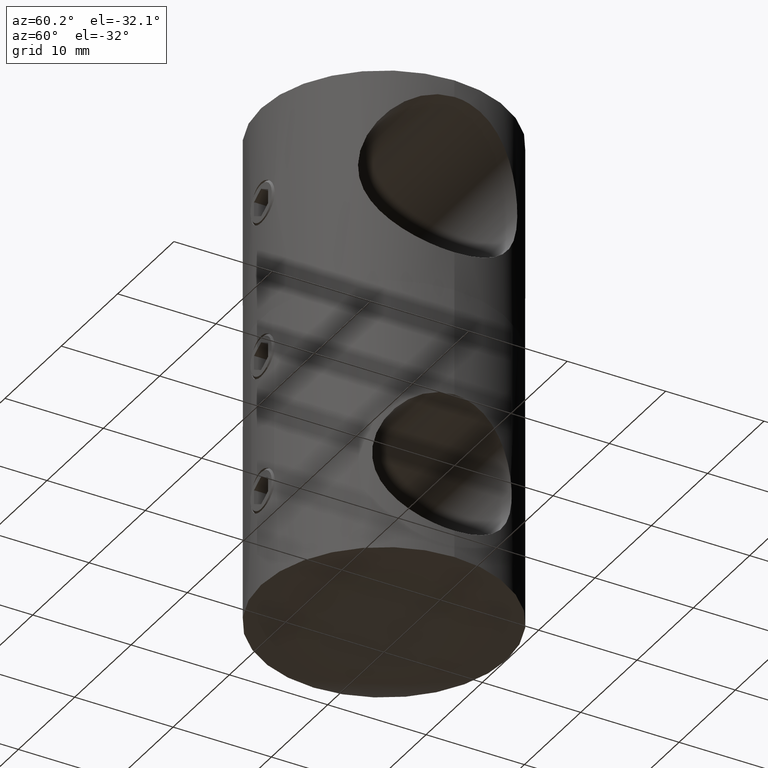
[diagram: clean part render]
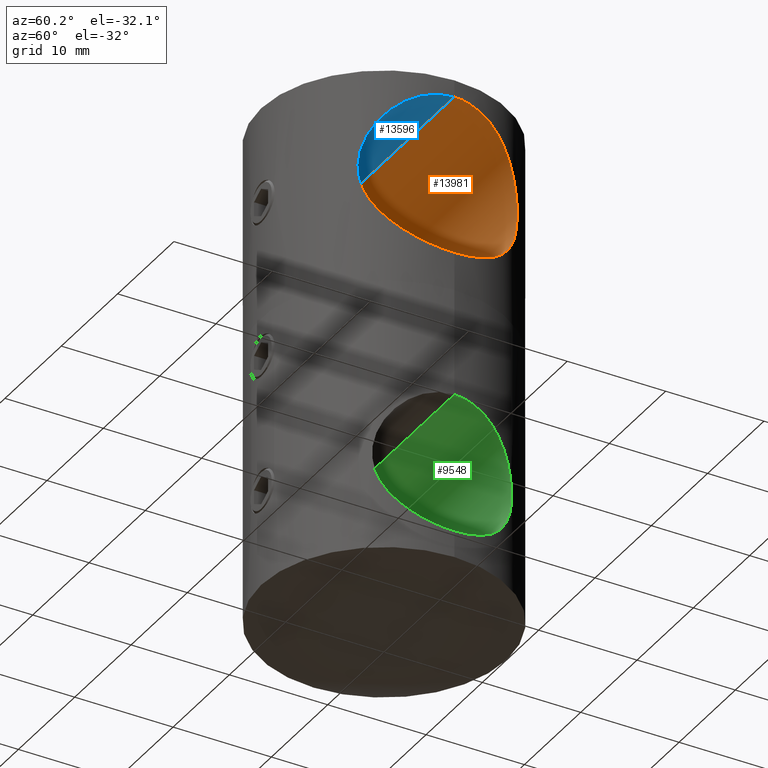
[diagram: same view with three faces highlighted in distinct colors, each labeled with its STEP entity id]
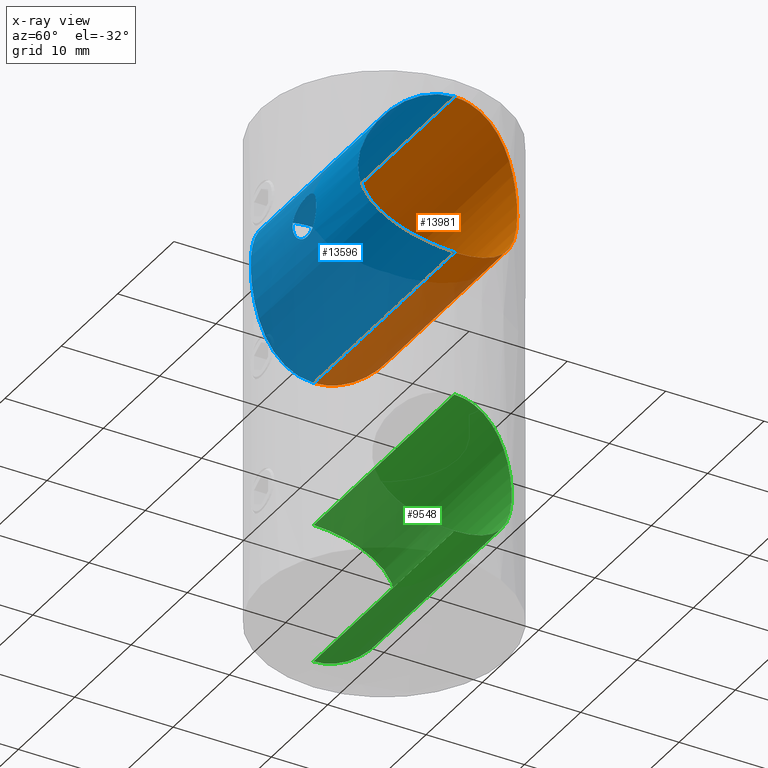
[diagram: x-ray of the same camera — body ghosted, the three highlighted faces saturated]
A machine part, auxiliary view with three faces highlighted in distinct colors.
The next image is the same camera in x-ray (body ghosted, the three faces saturated) — at least one of them is partly hidden behind the body in this view.
Their STEP definitions:

[orange] entity #13981 — the highlighted cylindrical surface (partial cylindrical patch) has radius 8.1 mm, axis along (1, 0, 0).
#131 = CARTESIAN_POINT ( 'NONE',  ( 12.50000000000000000, 2.427082314390154871E-15, 8.099999999999999645 ) ) ;
#816 = CARTESIAN_POINT ( 'NONE',  ( -12.35767926092468372, 1.900159969238726543, -7.878707128710948915 ) ) ;
#969 = EDGE_CURVE ( 'NONE', #1484, #6948, #11915, .T. ) ;
#1101 = CARTESIAN_POINT ( 'NONE',  ( 11.72524645729331816, 4.338365169962789203, 6.845111458609633104 ) ) ;
#1153 = CARTESIAN_POINT ( 'NONE',  ( -12.50000000000000000, 2.726687383286163214E-15, 8.099999999999999645 ) ) ;
#1163 = CARTESIAN_POINT ( 'NONE',  ( 9.950403799970375829, 7.566749653861298164, 2.902343117262097039 ) ) ;
#1217 = CARTESIAN_POINT ( 'NONE',  ( 9.879722448543168056, 7.661982178162126012, -2.679246210205128431 ) ) ;
#1344 = CARTESIAN_POINT ( 'NONE',  ( 11.29218558167254827, 5.376423904100859019, 6.080519229928162517 ) ) ;
#1398 = CARTESIAN_POINT ( 'NONE',  ( -12.22154858838973723, 2.672405942506484777, 7.665063226666491758 ) ) ;
#1484 = VERTEX_POINT ( 'NONE', #9557 ) ;
#1831 = CARTESIAN_POINT ( 'NONE',  ( -12.50000000000000000, 8.967065496086580962E-16, 8.099999999999999645 ) ) ;
#2259 = CARTESIAN_POINT ( 'NONE',  ( -9.880334013773667934, 7.657619852546257988, -2.653716543376681170 ) ) ;
#2318 = CARTESIAN_POINT ( 'NONE',  ( -12.21248697414113771, 2.678358357532246714, -7.649100295587559550 ) ) ;
#2338 = DIRECTION ( 'NONE',  ( 1.000000000000000000, -0.000000000000000000, -0.000000000000000000 ) ) ;
#2509 = CARTESIAN_POINT ( 'NONE',  ( -11.80508178603171565, 4.116968738876153111, -6.980705647827456950 ) ) ;
#2542 = CARTESIAN_POINT ( 'NONE',  ( 12.50000000000000355, 0.5528784438871122697, -8.100000000000003197 ) ) ;
#2665 = CARTESIAN_POINT ( 'NONE',  ( 9.615099075722453037, 7.987791517898862104, -1.370301011411880543 ) ) ;
#2666 = CARTESIAN_POINT ( 'NONE',  ( -12.49112763227392442, 0.5438777286051753590, 8.086328554396601476 ) ) ;
#2716 = CARTESIAN_POINT ( 'NONE',  ( 12.50000000000000000, 7.513900949208801608E-16, -8.099999999999999645 ) ) ;
#2729 = CARTESIAN_POINT ( 'NONE',  ( 9.700917027979013341, 7.883344374810544508, 1.880594189877250466 ) ) ;
#2788 = CARTESIAN_POINT ( 'NONE',  ( -12.42869573539206485, 1.360138927175487567, 7.989633586327260062 ) ) ;
#2909 = CARTESIAN_POINT ( 'NONE',  ( -12.50000000000000000, 1.734723475976807094E-15, 0.000000000000000000 ) ) ;
#3099 = DIRECTION ( 'NONE',  ( 0.000000000000000000, 0.000000000000000000, -1.000000000000000000 ) ) ;
#3110 = EDGE_LOOP ( 'NONE', ( #8944, #11411, #13011, #4473 ) ) ;
#3287 = VECTOR ( 'NONE', #2338, 1000.000000000000000 ) ;
#3795 = CARTESIAN_POINT ( 'NONE',  ( -12.50000000000000000, 1.734723475976807094E-15, -8.099999999999999645 ) ) ;
#3963 = CARTESIAN_POINT ( 'NONE',  ( -9.568569244901519610, 8.044376384039832573, -1.090564506137312373 ) ) ;
#4004 = CARTESIAN_POINT ( 'NONE',  ( 11.80531911616417062, 4.116239418310659204, 6.981102035184365562 ) ) ;
#4135 = CARTESIAN_POINT ( 'NONE',  ( 10.72318549548232269, 6.432673087154401337, -4.949268225173659275 ) ) ;
#4193 = CARTESIAN_POINT ( 'NONE',  ( 11.29106218945797657, 5.378467049727134075, -6.078259987980083601 ) ) ;
#4256 = CARTESIAN_POINT ( 'NONE',  ( -12.32358639111075327, 2.160796334112378592, 7.825461659380446910 ) ) ;
#4294 = VECTOR ( 'NONE', #12269, 1000.000000000000000 ) ;
#4316 = CARTESIAN_POINT ( 'NONE',  ( -12.50000000000000000, 8.967065496086580962E-16, 8.099999999999999645 ) ) ;
#4364 = CARTESIAN_POINT ( 'NONE',  ( 12.49110115871714832, 0.5451709117573753094, 8.086288115485565697 ) ) ;
#4473 = ORIENTED_EDGE ( 'NONE', *, *, #13827, .T. ) ;
#4925 = VERTEX_POINT ( 'NONE', #1831 ) ;
#5156 = CARTESIAN_POINT ( 'NONE',  ( -9.701591336837374513, 7.882512463272435710, -1.883833287180904037 ) ) ;
#5269 = CARTESIAN_POINT ( 'NONE',  ( -10.91395067144981290, 6.107510191931582177, -5.345263564523463629 ) ) ;
#5432 = CARTESIAN_POINT ( 'NONE',  ( 11.81273853583448030, 4.114187813272791594, -6.997060332505853353 ) ) ;
#5489 = CARTESIAN_POINT ( 'NONE',  ( -11.19526627058776036, 5.563968491168954422, 5.892240609505175364 ) ) ;
#5617 = CARTESIAN_POINT ( 'NONE',  ( 10.35589520320698043, 7.008696761748763215, 4.093141067324243210 ) ) ;
#5727 = CARTESIAN_POINT ( 'NONE',  ( -12.45561756411089505, 1.087043516167605084, 8.031366562875868809 ) ) ;
#5789 = CARTESIAN_POINT ( 'NONE',  ( 12.45529628258914556, 1.091060948458985713, 8.030868746058377639 ) ) ;
#6666 = CARTESIAN_POINT ( 'NONE',  ( -11.28850500002958590, 5.383832730285654122, -6.073538379814123367 ) ) ;
#6795 = CARTESIAN_POINT ( 'NONE',  ( -10.72008468265404524, 6.437815186178189819, -4.942573298076234245 ) ) ;
#6890 = CARTESIAN_POINT ( 'NONE',  ( 12.50000000000000000, 7.513900949208801608E-16, -8.099999999999999645 ) ) ;
#6895 = EDGE_CURVE ( 'NONE', #4925, #16720, #12281, .T. ) ;
#6948 = VERTEX_POINT ( 'NONE', #2716 ) ;
#6957 = CARTESIAN_POINT ( 'NONE',  ( -10.72337136915052191, 6.432384334378387081, 4.949706724176071937 ) ) ;
#7207 = CARTESIAN_POINT ( 'NONE',  ( -11.55808065896021652, 4.765924682120233236, 6.554653481533826209 ) ) ;
#7339 = AXIS2_PLACEMENT_3D ( 'NONE', #2909, #14585, #3099 ) ;
#8133 = CARTESIAN_POINT ( 'NONE',  ( -12.15475101984847406, 2.928408953426673289, -7.556761950785598536 ) ) ;
#8407 = CARTESIAN_POINT ( 'NONE',  ( -10.17952911167893504, 7.258907725143648904, 3.632230832960246847 ) ) ;
#8466 = CARTESIAN_POINT ( 'NONE',  ( 12.32475623888217875, 2.153082440414254339, -7.827294829591770586 ) ) ;
#8533 = CARTESIAN_POINT ( 'NONE',  ( 9.567435330464277854, 8.045733034332242184, 1.082216288772029467 ) ) ;
#8773 = CARTESIAN_POINT ( 'NONE',  ( 12.32307737004344794, 2.163398512750488223, 7.824660210649143188 ) ) ;
#8944 = ORIENTED_EDGE ( 'NONE', *, *, #6895, .F. ) ;
#9510 = CARTESIAN_POINT ( 'NONE',  ( -11.95657642635677753, 3.653719711810222925, -7.233948797580966428 ) ) ;
#9513 = EDGE_CURVE ( 'NONE', #4925, #1484, #18048, .T. ) ;
#9557 = CARTESIAN_POINT ( 'NONE',  ( -12.50000000000000000, 1.836811718986908191E-15, -8.099999999999999645 ) ) ;
#9562 = CARTESIAN_POINT ( 'NONE',  ( -9.520042000924567205, 8.100543242096662766, -0.5355436815845927567 ) ) ;
#9687 = CARTESIAN_POINT ( 'NONE',  ( -9.951367014874424655, 7.565489801909761169, -2.905676790652591102 ) ) ;
#9726 = CARTESIAN_POINT ( 'NONE',  ( 10.18366656129051684, 7.253124976668679835, -3.643694447425235072 ) ) ;
#9787 = CARTESIAN_POINT ( 'NONE',  ( -11.47028590896112910, 4.972980621955423786, 6.398955306423481204 ) ) ;
#9843 = CARTESIAN_POINT ( 'NONE',  ( 10.35700933999126860, 7.007021317796642279, -4.095874908106633683 ) ) ;
#9906 = CARTESIAN_POINT ( 'NONE',  ( 9.520717587152519812, 8.099749177061479344, -0.2818719119406181695 ) ) ;
#9960 = CARTESIAN_POINT ( 'NONE',  ( 10.91406870405932672, 6.107576731453586483, 5.345666896797819589 ) ) ;
#10141 = CARTESIAN_POINT ( 'NONE',  ( 12.42819789938510944, 1.364561915774268552, 7.988859174643784478 ) ) ;
#11238 = CARTESIAN_POINT ( 'NONE',  ( -11.72613561294977025, 4.336013166652545436, 6.846642254217911727 ) ) ;
#11358 = CARTESIAN_POINT ( 'NONE',  ( 9.520085792176004702, 8.100491771003921926, 0.5418367762477696026 ) ) ;
#11411 = ORIENTED_EDGE ( 'NONE', *, *, #9513, .T. ) ;
#11416 = CARTESIAN_POINT ( 'NONE',  ( 11.47415152566536278, 4.980473280214814835, 6.408801668019295406 ) ) ;
#11475 = CARTESIAN_POINT ( 'NONE',  ( 12.50000000000000533, 0.2724670366685572609, 8.100000000000003197 ) ) ;
#11476 = CARTESIAN_POINT ( 'NONE',  ( -12.02870553853695590, 3.409507870961618892, 7.352312087053694434 ) ) ;
#11580 = CARTESIAN_POINT ( 'NONE',  ( 12.22101742506993105, 2.675014017406148081, 7.664227444482222040 ) ) ;
#11659 = FACE_OUTER_BOUND ( 'NONE', #3110, .T. ) ;
#11915 = LINE ( 'NONE', #3795, #4294 ) ;
#12097 = CARTESIAN_POINT ( 'NONE',  ( -9.876153600626508933, 7.666560138321561801, 2.666214138353496299 ) ) ;
#12269 = DIRECTION ( 'NONE',  ( 1.000000000000000000, -0.000000000000000000, -0.000000000000000000 ) ) ;
#12281 = LINE ( 'NONE', #1153, #3287 ) ;
#12480 = CARTESIAN_POINT ( 'NONE',  ( -12.46342989338710794, 1.097403203460836751, -8.043894698703233814 ) ) ;
#12544 = CARTESIAN_POINT ( 'NONE',  ( -12.02679822803973586, 3.416090709427555439, -7.349187332237026915 ) ) ;
#12582 = CARTESIAN_POINT ( 'NONE',  ( 9.748972396418560393, 7.824788271344593760, -2.161675574595297356 ) ) ;
#12769 = CARTESIAN_POINT ( 'NONE',  ( 9.880370690349279172, 7.657572029206114905, 2.653841750881935635 ) ) ;
#13011 = ORIENTED_EDGE ( 'NONE', *, *, #969, .T. ) ;
#13823 = CARTESIAN_POINT ( 'NONE',  ( -10.18033033413548516, 7.257839893384698371, -3.634849969413386894 ) ) ;
#13827 = EDGE_CURVE ( 'NONE', #6948, #16720, #15807, .T. ) ;
#13941 = CARTESIAN_POINT ( 'NONE',  ( -12.50000000000000000, 1.836811718986908191E-15, -8.099999999999999645 ) ) ;
#13977 = CARTESIAN_POINT ( 'NONE',  ( 9.755755582469777920, 7.815712851448844312, 2.143809237059420614 ) ) ;
#13981 = ADVANCED_FACE ( 'NONE', ( #11659 ), #14352, .F. ) ;
#13999 = CARTESIAN_POINT ( 'NONE',  ( -12.31385491636070384, 2.165044730195933909, -7.809924464396011068 ) ) ;
#14034 = CARTESIAN_POINT ( 'NONE',  ( 12.22070116454564470, 2.675759442852999825, -7.663693953457597630 ) ) ;
#14099 = CARTESIAN_POINT ( 'NONE',  ( -11.28897980041873872, 5.371864682342065045, 6.067967955959832516 ) ) ;
#14161 = CARTESIAN_POINT ( 'NONE',  ( 9.580336641796414199, 8.029227403483570669, -1.102748966237373285 ) ) ;
#14174 = CARTESIAN_POINT ( 'NONE',  ( 12.50000000000000000, 2.427082314390154871E-15, 8.099999999999999645 ) ) ;
#14222 = CARTESIAN_POINT ( 'NONE',  ( 10.17867724942866658, 7.260129053857309778, 3.630111527136852700 ) ) ;
#14352 = CYLINDRICAL_SURFACE ( 'NONE', #7339, 8.099999999999999645 ) ;
#14585 = DIRECTION ( 'NONE',  ( 1.000000000000000000, -0.000000000000000000, -0.000000000000000000 ) ) ;
#15207 = CARTESIAN_POINT ( 'NONE',  ( -11.72360578016522226, 4.342880312005185317, -6.842318894509210381 ) ) ;
#15241 = CARTESIAN_POINT ( 'NONE',  ( -9.568298830503607633, 8.044728929722264610, 1.090548818117098362 ) ) ;
#15333 = CARTESIAN_POINT ( 'NONE',  ( -9.755670522168493619, 7.815819515107560456, -2.143436167924173574 ) ) ;
#15416 = CARTESIAN_POINT ( 'NONE',  ( 11.96490898092270427, 3.653242207598543345, -7.248842320046704479 ) ) ;
#15482 = CARTESIAN_POINT ( 'NONE',  ( 11.95630330996560708, 3.654558460803603470, 7.233492588720793037 ) ) ;
#15544 = CARTESIAN_POINT ( 'NONE',  ( -10.91357912058284896, 6.108250137240770705, 5.344554176448153449 ) ) ;
#15779 = CARTESIAN_POINT ( 'NONE',  ( -11.95753491745220209, 3.650557408356762679, 7.235529152022655452 ) ) ;
#15807 = B_SPLINE_CURVE_WITH_KNOTS ( 'NONE', 3,
 ( #6890, #2542, #18424, #8466, #14034, #15416, #5432, #17099, #4193, #18294, #4135, #9843, #9726, #1217, #12582, #2665, #14161, #18484, #9906, #11358, #8533, #2729, #13977, #12769, #1163, #14222, #5617, #18543, #9960, #1344, #11416, #1101, #4004, #15482, #16915, #11580, #8773, #10141, #5789, #4364, #11475, #131 ),
 .UNSPECIFIED., .F., .F.,
 ( 4, 2, 2, 2, 2, 2, 2, 2, 2, 2, 2, 2, 2, 2, 2, 2, 2, 2, 2, 2, 4 ),
 ( 1.405338240085282366E-19, 0.001632328287734299225, 0.003264656575468598016, 0.004896984863202897241, 0.006529313150937196032, 0.008161641438671493956, 0.009793969726405794482, 0.01142629801414009327, 0.01224246215800724354, 0.01305862630187439206, 0.01469095458960868912, 0.01550711873347584112, 0.01632328287734298791, 0.01795561116507728497, 0.01958793945281158203, 0.02122026774054587561, 0.02203643188441302761, 0.02285259602828017267, 0.02448492431601446626, 0.02530108845988161478, 0.02611725260374875984 ),
 .UNSPECIFIED. ) ;
#16720 = VERTEX_POINT ( 'NONE', #14174 ) ;
#16756 = CARTESIAN_POINT ( 'NONE',  ( -9.520973359971112160, 8.099448548831345462, 0.5518523867819271622 ) ) ;
#16820 = CARTESIAN_POINT ( 'NONE',  ( -10.35414406946437715, 7.011232456810718716, -4.088656822821724823 ) ) ;
#16915 = CARTESIAN_POINT ( 'NONE',  ( 12.02760166335872682, 3.413435212782875094, 7.350508868551387742 ) ) ;
#16969 = CARTESIAN_POINT ( 'NONE',  ( -10.35676433114384487, 7.007402823801430536, 4.095298590516947890 ) ) ;
#17036 = CARTESIAN_POINT ( 'NONE',  ( -11.80640174314149249, 4.113160411817484707, 6.982933690658644998 ) ) ;
#17099 = CARTESIAN_POINT ( 'NONE',  ( 11.47347012154552104, 4.982651548008703024, -6.407696794538249030 ) ) ;
#17100 = CARTESIAN_POINT ( 'NONE',  ( -12.50000000000000000, 0.2720569333735966544, 8.099999999999999645 ) ) ;
#17866 = CARTESIAN_POINT ( 'NONE',  ( -9.747884632849888931, 7.826158140951160469, 2.158288449265032938 ) ) ;
#18048 = B_SPLINE_CURVE_WITH_KNOTS ( 'NONE', 3,
 ( #4316, #17100, #2666, #5727, #2788, #4256, #1398, #11476, #15779, #17036, #11238, #7207, #9787, #14099, #5489, #15544, #6957, #16969, #8407, #12097, #17866, #15241, #16756, #9562, #3963, #5156, #15333, #2259, #9687, #13823, #16820, #6795, #5269, #6666, #18078, #15207, #2509, #9510, #12544, #8133, #2318, #13999, #816, #12480, #18134, #13941 ),
 .UNSPECIFIED., .F., .F.,
 ( 4, 2, 2, 2, 2, 2, 2, 2, 2, 2, 2, 2, 2, 2, 2, 2, 2, 2, 2, 2, 2, 2, 4 ),
 ( 0.02611725260374877372, 0.02693218829954851373, 0.02774712399534825374, 0.02937699538694773030, 0.03019193108274747378, 0.03100686677854721032, 0.03182180247434695380, 0.03263673817014669382, 0.03426660956174617384, 0.03589648095334565386, 0.03752635234494513389, 0.03915622373654461391, 0.04078609512814409394, 0.04160103082394383395, 0.04241596651974356702, 0.04404583791134304704, 0.04567570930294252707, 0.04730558069454200709, 0.04812051639034174710, 0.04893545208614148712, 0.04975038778194122713, 0.05056532347774096714, 0.05219519486934044022 ),
 .UNSPECIFIED. ) ;
#18078 = CARTESIAN_POINT ( 'NONE',  ( -11.47046356455962979, 4.989251766208274042, -6.402274271509117654 ) ) ;
#18134 = CARTESIAN_POINT ( 'NONE',  ( -12.49999999999999645, 0.5520462798414247363, -8.099999999999997868 ) ) ;
#18294 = CARTESIAN_POINT ( 'NONE',  ( 10.91686002276924761, 6.102307794144016029, -5.351167337320835493 ) ) ;
#18424 = CARTESIAN_POINT ( 'NONE',  ( 12.46351380821524835, 1.093711065827361439, -8.044010470471869567 ) ) ;
#18484 = CARTESIAN_POINT ( 'NONE',  ( 9.533095215835642122, 8.085260569258725383, -0.5595618880688133512 ) ) ;
#18543 = CARTESIAN_POINT ( 'NONE',  ( 10.72277615019982910, 6.433386929966103729, 4.948450939890698841 ) ) ;

[blue] entity #13596 — the highlighted cylindrical surface (partial cylindrical patch) has radius 8.1 mm, axis along (1, 0, 0).
#81 = CARTESIAN_POINT ( 'NONE',  ( -12.50000000000000355, -0.2724670366685518763, 8.099999999999997868 ) ) ;
#203 = CARTESIAN_POINT ( 'NONE',  ( 1.281772080391796909, -7.926559139495124917, 1.669046021202049923 ) ) ;
#331 = CARTESIAN_POINT ( 'NONE',  ( 0.5455564666696971488, -7.840890400948564043, -2.032537597385604133 ) ) ;
#335 = CARTESIAN_POINT ( 'NONE',  ( -12.22101742506993105, -2.675014017406140532, 7.664227444482220264 ) ) ;
#462 = CARTESIAN_POINT ( 'NONE',  ( -2.099963855778694377, -8.099990629276257792, 0.1390292074463651828 ) ) ;
#602 = CARTESIAN_POINT ( 'NONE',  ( 12.22154858838973723, -2.672405942506479004, 7.665063226666491758 ) ) ;
#673 = CARTESIAN_POINT ( 'NONE',  ( 9.876153600626508933, -7.666560138321561801, 2.666214138353491414 ) ) ;
#742 = CARTESIAN_POINT ( 'NONE',  ( 12.50000000000000000, 2.427082314390154871E-15, 8.099999999999999645 ) ) ;
#969 = EDGE_CURVE ( 'NONE', #1484, #6948, #11915, .T. ) ;
#983 = CARTESIAN_POINT ( 'NONE',  ( 9.520973359971112160, -8.099448548831341910, 0.5518523867819272732 ) ) ;
#1037 = CARTESIAN_POINT ( 'NONE',  ( 9.747884632849885378, -7.826158140951158693, 2.158288449265030717 ) ) ;
#1153 = CARTESIAN_POINT ( 'NONE',  ( -12.50000000000000000, 2.726687383286163214E-15, 8.099999999999999645 ) ) ;
#1234 = CARTESIAN_POINT ( 'NONE',  ( -10.91686002276924583, -6.102307794144016029, -5.351167337320833717 ) ) ;
#1300 = CARTESIAN_POINT ( 'NONE',  ( -9.748972396418558617, -7.824788271344588431, -2.161675574595291138 ) ) ;
#1484 = VERTEX_POINT ( 'NONE', #9557 ) ;
#1582 = CARTESIAN_POINT ( 'NONE',  ( 0.9317717113104628801, -7.877329013341612729, 1.886961011386901754 ) ) ;
#1648 = CARTESIAN_POINT ( 'NONE',  ( -10.35589520320698753, -7.008696761748759663, 4.093141067324247651 ) ) ;
#1701 = CARTESIAN_POINT ( 'NONE',  ( -1.202710473682973927E-16, -7.823042886243178451, -2.099999999999990763 ) ) ;
#1711 = CARTESIAN_POINT ( 'NONE',  ( -2.100036001727676016, -8.100009333780954890, -0.1379351570402579663 ) ) ;
#1773 = CARTESIAN_POINT ( 'NONE',  ( 1.054784197163870063, -7.893032992989985175, 1.821011967114900099 ) ) ;
#1777 = CARTESIAN_POINT ( 'NONE',  ( -10.91406870405932672, -6.107576731453582930, 5.345666896797818701 ) ) ;
#1780 = CARTESIAN_POINT ( 'NONE',  ( -1.060159373533172023, -7.890546408866031314, -1.833312029548792799 ) ) ;
#1831 = CARTESIAN_POINT ( 'NONE',  ( -12.50000000000000000, 8.967065496086580962E-16, 8.099999999999999645 ) ) ;
#1967 = CARTESIAN_POINT ( 'NONE',  ( -0.2766506946506800402, -7.826767601995157086, -2.086262575367253458 ) ) ;
#2006 = VERTEX_POINT ( 'NONE', #7435 ) ;
#2106 = DIRECTION ( 'NONE',  ( 1.000000000000000000, -0.000000000000000000, -0.000000000000000000 ) ) ;
#2338 = DIRECTION ( 'NONE',  ( 1.000000000000000000, -0.000000000000000000, -0.000000000000000000 ) ) ;
#2360 = CARTESIAN_POINT ( 'NONE',  ( 11.28850500002958590, -5.383832730285659451, -6.073538379814116261 ) ) ;
#2426 = CARTESIAN_POINT ( 'NONE',  ( 10.91395067144981823, -6.107510191931581289, -5.345263564523460076 ) ) ;
#2686 = CARTESIAN_POINT ( 'NONE',  ( -10.72318549548232447, -6.432673087154400449, -4.949268225173653057 ) ) ;
#2716 = CARTESIAN_POINT ( 'NONE',  ( 12.50000000000000000, 7.513900949208801608E-16, -8.099999999999999645 ) ) ;
#2753 = CARTESIAN_POINT ( 'NONE',  ( -9.615099075722451261, -7.987791517898862104, -1.370301011411874770 ) ) ;
#2805 = CARTESIAN_POINT ( 'NONE',  ( -9.567435330464277854, -8.045733034332240408, 1.082216288772036350 ) ) ;
#2920 = CARTESIAN_POINT ( 'NONE',  ( 2.571853334264999719E-16, -7.823042886243180227, 2.099999999999984546 ) ) ;
#3034 = CARTESIAN_POINT ( 'NONE',  ( 0.9332792127293656481, -7.877502656921246071, -1.886242425350425744 ) ) ;
#3101 = CARTESIAN_POINT ( 'NONE',  ( 1.387176193846409555, -7.944503051110157976, 1.582607048981691911 ) ) ;
#3230 = CARTESIAN_POINT ( 'NONE',  ( 0.1393970156655755799, -7.823042886243180227, -2.099999999999990763 ) ) ;
#3287 = VECTOR ( 'NONE', #2338, 1000.000000000000000 ) ;
#3292 = CARTESIAN_POINT ( 'NONE',  ( 2.032336992243493068, -8.082679516342375692, -0.5465830905218652669 ) ) ;
#3301 = CARTESIAN_POINT ( 'NONE',  ( -1.992111612988272995, -8.072536506465356254, 0.6787152657178339155 ) ) ;
#3371 = CARTESIAN_POINT ( 'NONE',  ( -1.992075234238679160, -8.072531227923001040, -0.6785523326737469274 ) ) ;
#3674 = ORIENTED_EDGE ( 'NONE', *, *, #4929, .T. ) ;
#3795 = CARTESIAN_POINT ( 'NONE',  ( -12.50000000000000000, 1.734723475976807094E-15, -8.099999999999999645 ) ) ;
#3825 = CARTESIAN_POINT ( 'NONE',  ( 11.47046356455962979, -4.989251766208272265, -6.402274271509117654 ) ) ;
#3888 = CARTESIAN_POINT ( 'NONE',  ( 12.46342989338710616, -1.097403203460835197, -8.043894698703233814 ) ) ;
#3942 = CARTESIAN_POINT ( 'NONE',  ( 9.755670522168493619, -7.815819515107556903, -2.143436167924175795 ) ) ;
#4294 = VECTOR ( 'NONE', #12269, 1000.000000000000000 ) ;
#4426 = CARTESIAN_POINT ( 'NONE',  ( -12.32307737004344439, -2.163398512750482450, 7.824660210649141412 ) ) ;
#4484 = CARTESIAN_POINT ( 'NONE',  ( 0.1374088854856505837, -7.823042886243182004, 2.099999999999984546 ) ) ;
#4489 = CARTESIAN_POINT ( 'NONE',  ( -10.17867724942867369, -7.260129053857303560, 3.630111527136863359 ) ) ;
#4553 = CARTESIAN_POINT ( 'NONE',  ( -12.02760166335872682, -3.413435212782870209, 7.350508868551384190 ) ) ;
#4656 = EDGE_LOOP ( 'NONE', ( #3674, #12224 ) ) ;
#4672 = CARTESIAN_POINT ( 'NONE',  ( 0.6792593062378836644, -7.851460451788527806, -1.991865299410036538 ) ) ;
#4764 = DIRECTION ( 'NONE',  ( 0.000000000000000000, 0.000000000000000000, -1.000000000000000000 ) ) ;
#4925 = VERTEX_POINT ( 'NONE', #1831 ) ;
#4929 = EDGE_CURVE ( 'NONE', #2006, #8575, #5985, .T. ) ;
#4964 = CARTESIAN_POINT ( 'NONE',  ( 11.47028590896113087, -4.972980621955418457, 6.398955306423482092 ) ) ;
#5166 = ORIENTED_EDGE ( 'NONE', *, *, #6895, .T. ) ;
#5280 = EDGE_CURVE ( 'NONE', #1484, #4925, #11537, .T. ) ;
#5309 = CARTESIAN_POINT ( 'NONE',  ( 11.72360578016522048, -4.342880312005181764, -6.842318894509210381 ) ) ;
#5438 = CARTESIAN_POINT ( 'NONE',  ( 9.951367014874428207, -7.565489801909757617, -2.905676790652586217 ) ) ;
#5564 = ORIENTED_EDGE ( 'NONE', *, *, #5280, .T. ) ;
#5638 = CARTESIAN_POINT ( 'NONE',  ( -10.18366656129052039, -7.253124976668681612, -3.643694447425231075 ) ) ;
#5915 = CARTESIAN_POINT ( 'NONE',  ( 0.2763395228398802805, -7.826767784548457563, -2.086259190807268293 ) ) ;
#5985 = B_SPLINE_CURVE_WITH_KNOTS ( 'NONE', 3,
 ( #1701, #3230, #5915, #331, #4672, #3034, #13200, #14713, #8899, #11891, #11765, #6119, #3292, #6182, #7522, #14654, #17535, #16155, #13332, #6047, #8843, #3101, #203, #1773, #1582, #11707, #11642, #13078, #4484, #10266 ),
 .UNSPECIFIED., .F., .F.,
 ( 4, 2, 2, 2, 2, 2, 2, 2, 2, 2, 2, 2, 2, 2, 4 ),
 ( 1.167989795847674507E-19, 0.0004121105272610999979, 0.0008242210545221997789, 0.001236331581783299723, 0.001648442109044399341, 0.002472663163566598578, 0.002884773690827697763, 0.003296884218088797815, 0.003708994745349897867, 0.004121105272610997919, 0.004945326327133198890, 0.005357436854394298509, 0.005769547381655398127, 0.006181657908916499480, 0.006593768436177599966 ),
 .UNSPECIFIED. ) ;
#6047 = CARTESIAN_POINT ( 'NONE',  ( 1.833616210287148496, -8.034400197566545998, 1.060239780147964384 ) ) ;
#6119 = CARTESIAN_POINT ( 'NONE',  ( 1.991690038009443997, -8.072436810963147025, -0.6796046673554460016 ) ) ;
#6126 = CARTESIAN_POINT ( 'NONE',  ( -0.1393588920678125731, -7.823042886243180227, -2.099999999999991207 ) ) ;
#6182 = CARTESIAN_POINT ( 'NONE',  ( 2.086484585860576058, -8.096464193763415196, -0.2751886586543514923 ) ) ;
#6273 = ORIENTED_EDGE ( 'NONE', *, *, #969, .F. ) ;
#6286 = FACE_OUTER_BOUND ( 'NONE', #12356, .T. ) ;
#6353 = CARTESIAN_POINT ( 'NONE',  ( 12.49999999999999645, -0.2720569333735904372, 8.099999999999997868 ) ) ;
#6413 = CARTESIAN_POINT ( 'NONE',  ( 10.35676433114384132, -7.007402823801429648, 4.095298590516941672 ) ) ;
#6473 = CARTESIAN_POINT ( 'NONE',  ( 11.80640174314149604, -4.113160411817484707, 6.982933690658644998 ) ) ;
#6586 = EDGE_CURVE ( 'NONE', #8575, #2006, #6758, .T. ) ;
#6758 = B_SPLINE_CURVE_WITH_KNOTS ( 'NONE', 3,
 ( #2920, #13029, #12963, #15842, #17649, #10599, #10473, #10348, #10413, #9235, #7779, #3301, #11961, #16164, #462, #1711, #13394, #14784, #3371, #8974, #14661, #17592, #1780, #11775, #16287, #1967, #6126, #13342 ),
 .UNSPECIFIED., .F., .F.,
 ( 4, 2, 2, 2, 2, 2, 2, 2, 2, 2, 2, 2, 2, 4 ),
 ( 0.006593768436177599966, 0.007417764075027876575, 0.007829761894453014445, 0.008241759713878154051, 0.008653757533303291921, 0.009065755352728429792, 0.009477753172153567662, 0.009889750991578707268, 0.01030174881100384514, 0.01071374663042898301, 0.01153774226927926048, 0.01236173790812953796, 0.01277373572755467410, 0.01318573354697981370 ),
 .UNSPECIFIED. ) ;
#6836 = CARTESIAN_POINT ( 'NONE',  ( 12.35767926092468549, -1.900159969238723212, -7.878707128710947138 ) ) ;
#6895 = EDGE_CURVE ( 'NONE', #4925, #16720, #12281, .T. ) ;
#6909 = CARTESIAN_POINT ( 'NONE',  ( -12.49999999999999822, -0.5528784438871099383, -8.099999999999997868 ) ) ;
#6948 = VERTEX_POINT ( 'NONE', #2716 ) ;
#7105 = CARTESIAN_POINT ( 'NONE',  ( -9.520717587152523365, -8.099749177061481120, -0.2818719119406126183 ) ) ;
#7326 = CARTESIAN_POINT ( 'NONE',  ( -9.950403799970382934, -7.566749653861293723, 2.902343117262105920 ) ) ;
#7435 = CARTESIAN_POINT ( 'NONE',  ( -1.202710473682973927E-16, -7.823042886243178451, -2.099999999999990763 ) ) ;
#7522 = CARTESIAN_POINT ( 'NONE',  ( 2.099942926697037304, -8.099985203218929897, -0.1385119895762945974 ) ) ;
#7779 = CARTESIAN_POINT ( 'NONE',  ( -1.885779678145580007, -8.046956068235987303, 0.9343436712550255985 ) ) ;
#7863 = CARTESIAN_POINT ( 'NONE',  ( 10.72337136915052014, -6.432384334378387081, 4.949706724176069272 ) ) ;
#7866 = FACE_BOUND ( 'NONE', #4656, .T. ) ;
#7985 = CARTESIAN_POINT ( 'NONE',  ( 11.72613561294976847, -4.336013166652540107, 6.846642254217911727 ) ) ;
#8068 = AXIS2_PLACEMENT_3D ( 'NONE', #17865, #2106, #4764 ) ;
#8168 = CARTESIAN_POINT ( 'NONE',  ( 9.880334013773671487, -7.657619852546249106, -2.653716543376682946 ) ) ;
#8222 = CARTESIAN_POINT ( 'NONE',  ( 9.701591336837374513, -7.882512463272430381, -1.883833287180906257 ) ) ;
#8314 = CYLINDRICAL_SURFACE ( 'NONE', #8068, 8.099999999999999645 ) ;
#8355 = CARTESIAN_POINT ( 'NONE',  ( 12.02679822803973764, -3.416090709427553218, -7.349187332237026027 ) ) ;
#8426 = CARTESIAN_POINT ( 'NONE',  ( -12.32475623888217697, -2.153082440414252119, -7.827294829591765257 ) ) ;
#8484 = CARTESIAN_POINT ( 'NONE',  ( -12.46351380821525012, -1.093711065827358775, -8.044010470471867791 ) ) ;
#8555 = CARTESIAN_POINT ( 'NONE',  ( -9.520085792176002926, -8.100491771003916597, 0.5418367762477768190 ) ) ;
#8575 = VERTEX_POINT ( 'NONE', #15599 ) ;
#8843 = CARTESIAN_POINT ( 'NONE',  ( 1.678929214114099899, -7.998892864097129518, 1.291049244233754223 ) ) ;
#8899 = CARTESIAN_POINT ( 'NONE',  ( 1.388862400101279038, -7.944807795906346115, -1.581028672804893898 ) ) ;
#8968 = CARTESIAN_POINT ( 'NONE',  ( -11.29218558167255004, -5.376423904100852802, 6.080519229928166069 ) ) ;
#8974 = CARTESIAN_POINT ( 'NONE',  ( -1.834373160766826105, -8.034582231867528179, -1.058424836837624561 ) ) ;
#9235 = CARTESIAN_POINT ( 'NONE',  ( -1.821029367992422321, -8.031853039064843713, 1.054732758524322467 ) ) ;
#9256 = CARTESIAN_POINT ( 'NONE',  ( 12.32358639111075505, -2.160796334112374595, 7.825461659380446910 ) ) ;
#9315 = CARTESIAN_POINT ( 'NONE',  ( 10.17952911167893681, -7.258907725143648904, 3.632230832960240630 ) ) ;
#9557 = CARTESIAN_POINT ( 'NONE',  ( -12.50000000000000000, 1.836811718986908191E-15, -8.099999999999999645 ) ) ;
#9793 = CARTESIAN_POINT ( 'NONE',  ( 11.80508178603170855, -4.116968738876152223, -6.980705647827456062 ) ) ;
#9864 = CARTESIAN_POINT ( 'NONE',  ( -11.81273853583448030, -4.114187813272790706, -6.997060332505851576 ) ) ;
#9979 = CARTESIAN_POINT ( 'NONE',  ( -11.29106218945797835, -5.378467049727137628, -6.078259987980080936 ) ) ;
#10266 = CARTESIAN_POINT ( 'NONE',  ( 2.571853334264999719E-16, -7.823042886243180227, 2.099999999999984546 ) ) ;
#10348 = CARTESIAN_POINT ( 'NONE',  ( -1.581119761166854820, -7.980656778208159885, 1.388815894828332231 ) ) ;
#10413 = CARTESIAN_POINT ( 'NONE',  ( -1.669270891998766881, -7.998811198729383065, 1.281461603061460952 ) ) ;
#10473 = CARTESIAN_POINT ( 'NONE',  ( -1.387386807813797418, -7.944544358671756790, 1.582373892095162438 ) ) ;
#10599 = CARTESIAN_POINT ( 'NONE',  ( -1.282081432043077562, -7.926604022455674858, 1.668844337946344902 ) ) ;
#11055 = CARTESIAN_POINT ( 'NONE',  ( 10.72008468265403991, -6.437815186178186266, -4.942573298076234245 ) ) ;
#11177 = CARTESIAN_POINT ( 'NONE',  ( 12.49999999999999645, -0.5520462798414212946, -8.099999999999999645 ) ) ;
#11245 = CARTESIAN_POINT ( 'NONE',  ( 10.18033033413549049, -7.257839893384698371, -3.634849969413382453 ) ) ;
#11537 = B_SPLINE_CURVE_WITH_KNOTS ( 'NONE', 3,
 ( #15564, #6909, #8484, #8426, #18382, #18440, #9864, #18505, #9979, #1234, #2686, #12721, #5638, #14181, #1300, #2753, #14238, #15675, #7105, #8555, #2805, #11771, #13024, #15837, #7326, #4489, #1648, #14461, #1777, #8968, #17398, #13083, #13143, #14592, #4553, #335, #4426, #11713, #14528, #17538, #81, #14402 ),
 .UNSPECIFIED., .F., .F.,
 ( 4, 2, 2, 2, 2, 2, 2, 2, 2, 2, 2, 2, 2, 2, 2, 2, 2, 2, 2, 2, 4 ),
 ( 9.887555142250392510E-20, 0.001632328287734297273, 0.003264656575468594547, 0.004896984863202892037, 0.006529313150937190828, 0.008161641438671488752, 0.009793969726405785808, 0.01142629801414008633, 0.01224246215800723660, 0.01305862630187438686, 0.01469095458960868739, 0.01550711873347583418, 0.01632328287734298444, 0.01795561116507728497, 0.01958793945281158203, 0.02122026774054588602, 0.02203643188441303455, 0.02285259602828018308, 0.02448492431601447666, 0.02530108845988162519, 0.02611725260374877372 ),
 .UNSPECIFIED. ) ;
#11642 = CARTESIAN_POINT ( 'NONE',  ( 0.5474206633937981348, -7.841008623956372325, 2.032084551580772835 ) ) ;
#11707 = CARTESIAN_POINT ( 'NONE',  ( 0.6783599694051793971, -7.851387527725690596, 1.992146614183131659 ) ) ;
#11713 = CARTESIAN_POINT ( 'NONE',  ( -12.42819789938510766, -1.364561915774262779, 7.988859174643782701 ) ) ;
#11765 = CARTESIAN_POINT ( 'NONE',  ( 1.834297704897317471, -8.034567537094863710, -1.058356639039049751 ) ) ;
#11771 = CARTESIAN_POINT ( 'NONE',  ( -9.700917027979018670, -7.883344374810544508, 1.880594189877258904 ) ) ;
#11775 = CARTESIAN_POINT ( 'NONE',  ( -0.6810163885353470725, -7.851622730668375461, -1.991220581023329439 ) ) ;
#11891 = CARTESIAN_POINT ( 'NONE',  ( 1.678033487164460658, -7.998745212466877419, -1.291729591880574013 ) ) ;
#11915 = LINE ( 'NONE', #3795, #4294 ) ;
#11961 = CARTESIAN_POINT ( 'NONE',  ( -2.032221347532793043, -8.082650937552685377, 0.5466912938709509451 ) ) ;
#12104 = CARTESIAN_POINT ( 'NONE',  ( 12.02870553853695768, -3.409507870961614007, 7.352312087053697098 ) ) ;
#12224 = ORIENTED_EDGE ( 'NONE', *, *, #6586, .T. ) ;
#12269 = DIRECTION ( 'NONE',  ( 1.000000000000000000, -0.000000000000000000, -0.000000000000000000 ) ) ;
#12281 = LINE ( 'NONE', #1153, #3287 ) ;
#12356 = EDGE_LOOP ( 'NONE', ( #5564, #5166, #17972, #6273 ) ) ;
#12461 = CARTESIAN_POINT ( 'NONE',  ( 11.95657642635678641, -3.653719711810223814, -7.233948797580965540 ) ) ;
#12523 = CARTESIAN_POINT ( 'NONE',  ( 9.520042000924570758, -8.100543242096659213, -0.5355436815845960874 ) ) ;
#12721 = CARTESIAN_POINT ( 'NONE',  ( -10.35700933999127216, -7.007021317796643167, -4.095874908106631018 ) ) ;
#12963 = CARTESIAN_POINT ( 'NONE',  ( -0.5521391127891186468, -7.838466321805964476, 2.044538642105133253 ) ) ;
#13024 = CARTESIAN_POINT ( 'NONE',  ( -9.755755582469783249, -7.815712851448842535, 2.143809237059426387 ) ) ;
#13029 = CARTESIAN_POINT ( 'NONE',  ( -0.2747426112405930709, -7.823042886243180227, 2.099999999999983658 ) ) ;
#13078 = CARTESIAN_POINT ( 'NONE',  ( 0.2768375869842156223, -7.826773658910478382, 2.086240148668531358 ) ) ;
#13083 = CARTESIAN_POINT ( 'NONE',  ( -11.72524645729331638, -4.338365169962784762, 6.845111458609633992 ) ) ;
#13143 = CARTESIAN_POINT ( 'NONE',  ( -11.80531911616417240, -4.116239418310654763, 6.981102035184365562 ) ) ;
#13200 = CARTESIAN_POINT ( 'NONE',  ( 1.053661689262493928, -7.892877134124812954, -1.821696825501786909 ) ) ;
#13298 = B_SPLINE_CURVE_WITH_KNOTS ( 'NONE', 3,
 ( #742, #6353, #16552, #15189, #15071, #9256, #602, #12104, #13557, #6473, #7985, #16490, #4964, #18006, #14999, #16431, #7863, #6413, #9315, #673, #1037, #18115, #983, #12523, #15312, #8222, #3942, #8168, #5438, #11245, #15421, #11055, #2426, #2360, #3825, #5309, #9793, #12461, #8355, #18368, #13983, #16803, #6836, #3888, #11177, #13921 ),
 .UNSPECIFIED., .F., .F.,
 ( 4, 2, 2, 2, 2, 2, 2, 2, 2, 2, 2, 2, 2, 2, 2, 2, 2, 2, 2, 2, 2, 2, 4 ),
 ( 0.02611725260374875984, 0.02693218829954849639, 0.02774712399534823640, 0.02937699538694771295, 0.03019193108274745296, 0.03100686677854719298, 0.03182180247434693299, 0.03263673817014667300, 0.03426660956174615302, 0.03589648095334563305, 0.03752635234494511307, 0.03915622373654459309, 0.04078609512814407312, 0.04160103082394381313, 0.04241596651974355314, 0.04404583791134303317, 0.04567570930294250625, 0.04730558069454197934, 0.04812051639034172629, 0.04893545208614145936, 0.04975038778194119937, 0.05056532347774093938, 0.05219519486934041247 ),
 .UNSPECIFIED. ) ;
#13332 = CARTESIAN_POINT ( 'NONE',  ( 1.992439627379319012, -8.072618856403346754, 0.6776787813983297104 ) ) ;
#13342 = CARTESIAN_POINT ( 'NONE',  ( -1.202710473682973927E-16, -7.823042886243178451, -2.099999999999990763 ) ) ;
#13394 = CARTESIAN_POINT ( 'NONE',  ( -2.086506497724056608, -8.096470591677977779, -0.2746258918898651924 ) ) ;
#13557 = CARTESIAN_POINT ( 'NONE',  ( 11.95753491745220387, -3.650557408356762679, 7.235529152022655452 ) ) ;
#13596 = ADVANCED_FACE ( 'NONE', ( #7866, #6286 ), #8314, .F. ) ;
#13921 = CARTESIAN_POINT ( 'NONE',  ( 12.50000000000000000, 7.513900949208801608E-16, -8.099999999999999645 ) ) ;
#13983 = CARTESIAN_POINT ( 'NONE',  ( 12.21248697414113771, -2.678358357532246270, -7.649100295587560439 ) ) ;
#14174 = CARTESIAN_POINT ( 'NONE',  ( 12.50000000000000000, 2.427082314390154871E-15, 8.099999999999999645 ) ) ;
#14181 = CARTESIAN_POINT ( 'NONE',  ( -9.879722448543164504, -7.661982178162122459, -2.679246210205124878 ) ) ;
#14238 = CARTESIAN_POINT ( 'NONE',  ( -9.580336641796412422, -8.029227403483565340, -1.102748966237367068 ) ) ;
#14402 = CARTESIAN_POINT ( 'NONE',  ( -12.50000000000000000, 8.967065496086580962E-16, 8.099999999999999645 ) ) ;
#14461 = CARTESIAN_POINT ( 'NONE',  ( -10.72277615019983621, -6.433386929966097512, 4.948450939890706834 ) ) ;
#14528 = CARTESIAN_POINT ( 'NONE',  ( -12.45529628258914556, -1.091060948458977276, 8.030868746058374086 ) ) ;
#14592 = CARTESIAN_POINT ( 'NONE',  ( -11.95630330996560353, -3.654558460803595477, 7.233492588720788596 ) ) ;
#14654 = CARTESIAN_POINT ( 'NONE',  ( 2.100056714516191914, -8.100014703762283830, 0.1367759571589922118 ) ) ;
#14661 = CARTESIAN_POINT ( 'NONE',  ( -1.678164356520209122, -7.998777514172640934, -1.291510890710570347 ) ) ;
#14713 = CARTESIAN_POINT ( 'NONE',  ( 1.281488369571671893, -7.926507360768572319, -1.669302200955632198 ) ) ;
#14784 = CARTESIAN_POINT ( 'NONE',  ( -2.032840997093187774, -8.082807012191025819, -0.5445054876474505479 ) ) ;
#14999 = CARTESIAN_POINT ( 'NONE',  ( 11.19526627058776391, -5.563968491168954422, 5.892240609505170035 ) ) ;
#15071 = CARTESIAN_POINT ( 'NONE',  ( 12.42869573539206662, -1.360138927175483792, 7.989633586327261838 ) ) ;
#15189 = CARTESIAN_POINT ( 'NONE',  ( 12.45561756411089149, -1.087043516167599977, 8.031366562875867032 ) ) ;
#15312 = CARTESIAN_POINT ( 'NONE',  ( 9.568569244901519610, -8.044376384039829020, -1.090564506137315259 ) ) ;
#15421 = CARTESIAN_POINT ( 'NONE',  ( 10.35414406946437715, -7.011232456810716052, -4.088656822821723935 ) ) ;
#15564 = CARTESIAN_POINT ( 'NONE',  ( -12.50000000000000000, 1.836811718986908191E-15, -8.099999999999999645 ) ) ;
#15599 = CARTESIAN_POINT ( 'NONE',  ( 2.571853334264999719E-16, -7.823042886243180227, 2.099999999999984546 ) ) ;
#15675 = CARTESIAN_POINT ( 'NONE',  ( -9.533095215835645675, -8.085260569258721830, -0.5595618880688061347 ) ) ;
#15837 = CARTESIAN_POINT ( 'NONE',  ( -9.880370690349279172, -7.657572029206110464, 2.653841750881942296 ) ) ;
#15842 = CARTESIAN_POINT ( 'NONE',  ( -0.9315345540206660946, -7.877304792559965740, 1.887059177503089380 ) ) ;
#16155 = CARTESIAN_POINT ( 'NONE',  ( 2.032317377196225738, -8.082674931337242796, 0.5464572896016671733 ) ) ;
#16164 = CARTESIAN_POINT ( 'NONE',  ( -2.086049233360662836, -8.096352510665397517, 0.2778373123928564725 ) ) ;
#16287 = CARTESIAN_POINT ( 'NONE',  ( -0.5471693963785364545, -7.840991636083001204, -2.032149795634036860 ) ) ;
#16431 = CARTESIAN_POINT ( 'NONE',  ( 10.91357912058285073, -6.108250137240768041, 5.344554176448147231 ) ) ;
#16490 = CARTESIAN_POINT ( 'NONE',  ( 11.55808065896021475, -4.765924682120228795, 6.554653481533823545 ) ) ;
#16552 = CARTESIAN_POINT ( 'NONE',  ( 12.49112763227392442, -0.5438777286051699189, 8.086328554396603252 ) ) ;
#16720 = VERTEX_POINT ( 'NONE', #14174 ) ;
#16803 = CARTESIAN_POINT ( 'NONE',  ( 12.31385491636070739, -2.165044730195933909, -7.809924464396013732 ) ) ;
#17398 = CARTESIAN_POINT ( 'NONE',  ( -11.47415152566536811, -4.980473280214813059, 6.408801668019294517 ) ) ;
#17535 = CARTESIAN_POINT ( 'NONE',  ( 2.086242716403219788, -8.096402213067189990, 0.2766239672679619011 ) ) ;
#17538 = CARTESIAN_POINT ( 'NONE',  ( -12.49110115871714832, -0.5451709117573669827, 8.086288115485563921 ) ) ;
#17592 = CARTESIAN_POINT ( 'NONE',  ( -1.293016714593570260, -7.926922374916845371, -1.677004401932371991 ) ) ;
#17649 = CARTESIAN_POINT ( 'NONE',  ( -1.054360004563589026, -7.892971148410728333, 1.821290532414274077 ) ) ;
#17865 = CARTESIAN_POINT ( 'NONE',  ( -12.50000000000000000, 1.734723475976807094E-15, 0.000000000000000000 ) ) ;
#17924 = EDGE_CURVE ( 'NONE', #16720, #6948, #13298, .T. ) ;
#17972 = ORIENTED_EDGE ( 'NONE', *, *, #17924, .T. ) ;
#18006 = CARTESIAN_POINT ( 'NONE',  ( 11.28897980041874227, -5.371864682342060604, 6.067967955959836956 ) ) ;
#18115 = CARTESIAN_POINT ( 'NONE',  ( 9.568298830503607633, -8.044728929722264610, 1.090548818117093921 ) ) ;
#18368 = CARTESIAN_POINT ( 'NONE',  ( 12.15475101984847051, -2.928408953426670180, -7.556761950785594983 ) ) ;
#18382 = CARTESIAN_POINT ( 'NONE',  ( -12.22070116454564825, -2.675759442852998937, -7.663693953457598518 ) ) ;
#18440 = CARTESIAN_POINT ( 'NONE',  ( -11.96490898092270250, -3.653242207598543789, -7.248842320046698262 ) ) ;
#18505 = CARTESIAN_POINT ( 'NONE',  ( -11.47347012154552282, -4.982651548008704800, -6.407696794538246365 ) ) ;

[green] entity #9548 — the highlighted cylindrical surface (partial cylindrical patch) has radius 7.1 mm, axis along (-1, -0, 0).
#594 = CARTESIAN_POINT ( 'NONE',  ( -10.88909560909868723, 6.139503581357969253, -0.5734338522241579916 ) ) ;
#665 = CARTESIAN_POINT ( 'NONE',  ( -10.54124068422389193, 6.721338987096791229, 5.333667688976694521 ) ) ;
#720 = CARTESIAN_POINT ( 'NONE',  ( 12.09474588327908684, 3.187496164584719516, -3.361299522317986010 ) ) ;
#947 = DIRECTION ( 'NONE',  ( 1.000000000000000000, -0.000000000000000000, -0.000000000000000000 ) ) ;
#1204 = CARTESIAN_POINT ( 'NONE',  ( 12.49999999999999822, 2.427298681491636240E-15, 10.10000000000000320 ) ) ;
#1319 = ORIENTED_EDGE ( 'NONE', *, *, #4361, .T. ) ;
#1396 = CARTESIAN_POINT ( 'NONE',  ( -12.49999999999999822, 0.2397798003476054873, -4.099999999999996980 ) ) ;
#1854 = CARTESIAN_POINT ( 'NONE',  ( -11.58512768093194190, 4.707102817139626083, 8.334627346252807101 ) ) ;
#1913 = CARTESIAN_POINT ( 'NONE',  ( -11.37442896416549054, 5.186797260141183585, 7.853699686406231173 ) ) ;
#1982 = CARTESIAN_POINT ( 'NONE',  ( -10.32948239257338230, 7.039363743819931685, 3.955777705983301917 ) ) ;
#2047 = CARTESIAN_POINT ( 'NONE',  ( -11.30260226496380582, 5.350137245759835736, -1.689624924682953999 ) ) ;
#2377 = DIRECTION ( 'NONE',  ( 0.000000000000000000, 0.000000000000000000, -1.000000000000000000 ) ) ;
#2584 = CARTESIAN_POINT ( 'NONE',  ( 11.98032867455219552, 3.589032839019615562, 9.143070526304029499 ) ) ;
#2598 = CARTESIAN_POINT ( 'NONE',  ( -12.23912789366316822, 2.549971958430644836, -3.630395001688510259 ) ) ;
#3355 = EDGE_CURVE ( 'NONE', #3541, #3405, #16097, .T. ) ;
#3383 = CARTESIAN_POINT ( 'NONE',  ( -12.50000000000000533, 0.4799539051028668402, 10.10000000000000853 ) ) ;
#3405 = VERTEX_POINT ( 'NONE', #11887 ) ;
#3509 = CARTESIAN_POINT ( 'NONE',  ( -12.47241159761730955, 0.9511822130778535556, 10.05174284442394850 ) ) ;
#3541 = VERTEX_POINT ( 'NONE', #7582 ) ;
#3574 = CARTESIAN_POINT ( 'NONE',  ( -10.88816703618159742, 6.146595381488630494, 6.582789047978088171 ) ) ;
#3660 = DIRECTION ( 'NONE',  ( 1.000000000000000000, -0.000000000000000000, -0.000000000000000000 ) ) ;
#3984 = CARTESIAN_POINT ( 'NONE',  ( 12.24072011514203950, 2.542285523396221159, 9.633329130939639384 ) ) ;
#4253 = CARTESIAN_POINT ( 'NONE',  ( -12.28355408712935315, 2.327268730588594181, -3.711861126518968934 ) ) ;
#4361 = EDGE_CURVE ( 'NONE', #16380, #7894, #9043, .T. ) ;
#4826 = CARTESIAN_POINT ( 'NONE',  ( -10.76119357562656376, 6.363243337331821792, 6.183007523073631440 ) ) ;
#4888 = CARTESIAN_POINT ( 'NONE',  ( -11.72285358696203339, 4.357488413051602727, 8.624561647930461206 ) ) ;
#5005 = CARTESIAN_POINT ( 'NONE',  ( 11.37402628047061448, 5.187679897919521999, -1.852757224968613503 ) ) ;
#5019 = CARTESIAN_POINT ( 'NONE',  ( -10.95590503741818189, 6.019886174600861395, -0.7713608437412746710 ) ) ;
#5056 = CARTESIAN_POINT ( 'NONE',  ( 10.28795124725935572, 7.099863319915307613, 2.517279186960945214 ) ) ;
#5105 = VECTOR ( 'NONE', #3660, 1000.000000000000000 ) ;
#5193 = EDGE_LOOP ( 'NONE', ( #8263, #10030, #15371, #1319 ) ) ;
#5240 = CARTESIAN_POINT ( 'NONE',  ( -11.72154789661120233, 4.346392963122595710, -2.618830262060698022 ) ) ;
#5299 = CARTESIAN_POINT ( 'NONE',  ( -11.58459427111668560, 4.699254457469040247, -2.327231255322796066 ) ) ;
#5431 = CARTESIAN_POINT ( 'NONE',  ( -12.09282248704222162, 3.195008394635598492, -3.357664730622601290 ) ) ;
#5676 = CARTESIAN_POINT ( 'NONE',  ( -12.44547036346077995, 1.189197617727925538, -4.003660064757344372 ) ) ;
#5710 = FACE_OUTER_BOUND ( 'NONE', #5193, .T. ) ;
#6344 = CARTESIAN_POINT ( 'NONE',  ( -10.70346527864366770, 6.457309689604072034, 0.03916698245446339349 ) ) ;
#6450 = CARTESIAN_POINT ( 'NONE',  ( 11.16189758074910543, 5.629205280336359252, -1.332888891083547911 ) ) ;
#6517 = CARTESIAN_POINT ( 'NONE',  ( 10.28776298659891530, 7.100136108486193365, 3.478691744017388565 ) ) ;
#6574 = CARTESIAN_POINT ( 'NONE',  ( 10.45442333798881762, 6.852873825890779536, 4.871768109421391379 ) ) ;
#6751 = CARTESIAN_POINT ( 'NONE',  ( 11.58671775153815098, 4.703273353215214669, 8.338114052707290114 ) ) ;
#6768 = CARTESIAN_POINT ( 'NONE',  ( -11.78780696279484808, 4.163804789402317574, -2.755402572058840427 ) ) ;
#6856 = EDGE_CURVE ( 'NONE', #3541, #7894, #16755, .T. ) ;
#7083 = CARTESIAN_POINT ( 'NONE',  ( -11.97780161950913680, 3.597349250370597495, -3.138142612688544109 ) ) ;
#7408 = AXIS2_PLACEMENT_3D ( 'NONE', #15440, #947, #2377 ) ;
#7582 = CARTESIAN_POINT ( 'NONE',  ( -12.49999999999999822, 8.964901825575159134E-16, 10.10000000000000320 ) ) ;
#7789 = CARTESIAN_POINT ( 'NONE',  ( -11.30350596078847047, 5.339170464550236694, 7.685646370529847005 ) ) ;
#7822 = LINE ( 'NONE', #10767, #5105 ) ;
#7894 = VERTEX_POINT ( 'NONE', #12594 ) ;
#7904 = CARTESIAN_POINT ( 'NONE',  ( 11.09131400361184383, 5.766588826831746672, -1.148308219944816466 ) ) ;
#8201 = CARTESIAN_POINT ( 'NONE',  ( 12.39391654726004077, 1.641484044854726765, 9.911632378378323338 ) ) ;
#8263 = ORIENTED_EDGE ( 'NONE', *, *, #6856, .F. ) ;
#8264 = CARTESIAN_POINT ( 'NONE',  ( 10.89076193942645077, 6.136548808116677023, 6.578493631343572012 ) ) ;
#8390 = CARTESIAN_POINT ( 'NONE',  ( 10.59483006856255827, 6.634052515645170622, 5.540238897514832672 ) ) ;
#8450 = CARTESIAN_POINT ( 'NONE',  ( 12.36157828789706237, 1.869096526884922893, 9.853610966340577093 ) ) ;
#9043 = B_SPLINE_CURVE_WITH_KNOTS ( 'NONE', 3,
 ( #9524, #15288, #17981, #13595, #12148, #720, #12272, #16714, #12213, #5005, #15110, #6450, #7904, #17915, #9349, #10791, #9469, #13665, #5056, #6517, #16531, #9410, #6574, #12629, #8390, #16954, #11218, #8264, #17013, #15402, #15349, #6751, #18276, #2584, #9827, #3984, #16777, #8450, #8201, #14143, #9709, #1204 ),
 .UNSPECIFIED., .F., .F.,
 ( 4, 2, 2, 2, 2, 2, 2, 2, 2, 2, 2, 2, 2, 2, 2, 2, 2, 2, 2, 2, 4 ),
 ( 6.920752433677485315E-19, 0.001419307301426403880, 0.002838614602852807325, 0.004257921904279210121, 0.005677229205705613783, 0.006386882856418816048, 0.007096536507132019181, 0.008515843808558425446, 0.009935151109984831710, 0.01135445841141123971, 0.01277376571283764944, 0.01348341936355085258, 0.01419307301426405744, 0.01490272666497726058, 0.01561238031569046544, 0.01703168761711687865, 0.01845099491854329185, 0.01987030221996970505, 0.02057995587068291166, 0.02128960952139611826, 0.02270891682282253146 ),
 .UNSPECIFIED. ) ;
#9246 = CARTESIAN_POINT ( 'NONE',  ( -10.45369377733144134, 6.853982002503382631, 1.132369744962724578 ) ) ;
#9308 = CARTESIAN_POINT ( 'NONE',  ( -12.09486426576824947, 3.187016512190906425, 9.361522348503292790 ) ) ;
#9349 = CARTESIAN_POINT ( 'NONE',  ( 10.76036465851576018, 6.364631587517308731, -0.1801572560745108020 ) ) ;
#9410 = CARTESIAN_POINT ( 'NONE',  ( 10.41557569167953901, 6.911509236011337265, 4.642112633211110229 ) ) ;
#9469 = CARTESIAN_POINT ( 'NONE',  ( 10.44773442666880214, 6.863499158220038865, 1.122735824764287793 ) ) ;
#9524 = CARTESIAN_POINT ( 'NONE',  ( 12.49999999999999822, 7.859759060395799831E-16, -4.099999999999996980 ) ) ;
#9548 = ADVANCED_FACE ( 'NONE', ( #5710 ), #14465, .F. ) ;
#9709 = CARTESIAN_POINT ( 'NONE',  ( 12.49999999999999645, 0.4809610958689551352, 10.10000000000000320 ) ) ;
#9775 = CARTESIAN_POINT ( 'NONE',  ( -12.49999999999999822, 2.604222703371427672E-15, 10.10000000000000142 ) ) ;
#9827 = CARTESIAN_POINT ( 'NONE',  ( 12.09508519001898641, 3.186329035902477624, 9.361948714217556144 ) ) ;
#10030 = ORIENTED_EDGE ( 'NONE', *, *, #3355, .T. ) ;
#10671 = CARTESIAN_POINT ( 'NONE',  ( -11.16027666235573790, 5.637531711305987514, -1.340161849452315312 ) ) ;
#10767 = CARTESIAN_POINT ( 'NONE',  ( -12.49999999999999822, 1.734723475976807094E-15, -4.099999999999996980 ) ) ;
#10791 = CARTESIAN_POINT ( 'NONE',  ( 10.54080125387373279, 6.722015453373494154, 0.6683817502012843192 ) ) ;
#11218 = CARTESIAN_POINT ( 'NONE',  ( 10.76464359171547436, 6.355184909898130563, 6.174030986768688223 ) ) ;
#11473 = CARTESIAN_POINT ( 'NONE',  ( -12.39271462522872547, 1.650620416519916311, -3.909478816615203467 ) ) ;
#11887 = CARTESIAN_POINT ( 'NONE',  ( -12.49999999999999822, 1.674654898630422701E-15, -4.099999999999996980 ) ) ;
#11914 = CARTESIAN_POINT ( 'NONE',  ( -10.76299649604914421, 6.357972462635670396, -0.1684570197645778866 ) ) ;
#12027 = CARTESIAN_POINT ( 'NONE',  ( -10.29656404782429746, 7.087426699821469889, 3.484288876311471217 ) ) ;
#12095 = CARTESIAN_POINT ( 'NONE',  ( -11.51408151635098243, 4.868944799639101539, -2.172524930702209645 ) ) ;
#12148 = CARTESIAN_POINT ( 'NONE',  ( 12.28868335539654133, 2.330508779459674162, -3.722722085639619038 ) ) ;
#12163 = CARTESIAN_POINT ( 'NONE',  ( -11.09166530797232930, 5.765905370694642151, 7.149227433234647933 ) ) ;
#12213 = CARTESIAN_POINT ( 'NONE',  ( 11.58475042720364456, 4.708029709747258984, -2.333812696673054798 ) ) ;
#12272 = CARTESIAN_POINT ( 'NONE',  ( 11.97955674781280244, 3.592029824636716384, -3.141660185353178480 ) ) ;
#12594 = CARTESIAN_POINT ( 'NONE',  ( 12.49999999999999822, 2.427298681491636240E-15, 10.10000000000000320 ) ) ;
#12629 = CARTESIAN_POINT ( 'NONE',  ( 10.54423150536102582, 6.713868405384196159, 5.321500929185624784 ) ) ;
#12948 = CARTESIAN_POINT ( 'NONE',  ( -12.49999999999999822, 1.674654898630422701E-15, -4.099999999999996980 ) ) ;
#13355 = CARTESIAN_POINT ( 'NONE',  ( -10.28797178943786328, 7.099833554373478073, 3.244276039956542679 ) ) ;
#13409 = CARTESIAN_POINT ( 'NONE',  ( -11.16205403663977691, 5.628902018887849579, 7.333299576644273898 ) ) ;
#13480 = CARTESIAN_POINT ( 'NONE',  ( -10.41480574227798606, 6.912668111617628064, 1.362748569575276569 ) ) ;
#13595 = CARTESIAN_POINT ( 'NONE',  ( 12.36744064349518268, 1.874052461373489464, -3.864372462422194676 ) ) ;
#13612 = CARTESIAN_POINT ( 'NONE',  ( -10.54309940824726866, 6.715641276056550701, 0.6836938217289965092 ) ) ;
#13665 = CARTESIAN_POINT ( 'NONE',  ( 10.32191336193627329, 7.051303418075911544, 2.045609312314090822 ) ) ;
#13901 = DIRECTION ( 'NONE',  ( 1.000000000000000000, -0.000000000000000000, -0.000000000000000000 ) ) ;
#14143 = CARTESIAN_POINT ( 'NONE',  ( 12.47236506100287912, 0.9511355239451586563, 10.05165719732110219 ) ) ;
#14277 = CARTESIAN_POINT ( 'NONE',  ( -12.36018587133492552, 1.878213508060264658, -3.851100170351610785 ) ) ;
#14465 = CYLINDRICAL_SURFACE ( 'NONE', #7408, 7.099999999999999645 ) ;
#14742 = VECTOR ( 'NONE', #13901, 1000.000000000000000 ) ;
#14800 = CARTESIAN_POINT ( 'NONE',  ( -10.28763066194222375, 7.100327846217666661, 2.526108018380264220 ) ) ;
#14868 = CARTESIAN_POINT ( 'NONE',  ( -10.35379304955138480, 7.003725121456047198, 4.188724512186778881 ) ) ;
#14930 = CARTESIAN_POINT ( 'NONE',  ( -10.59351820108907738, 6.636142668883763029, 0.4652433916719454499 ) ) ;
#14992 = CARTESIAN_POINT ( 'NONE',  ( -11.97960984808971929, 3.591928364928692829, 9.141779027486238718 ) ) ;
#15074 = CARTESIAN_POINT ( 'NONE',  ( 12.49999999999999822, 7.859759060395799831E-16, -4.099999999999996980 ) ) ;
#15110 = CARTESIAN_POINT ( 'NONE',  ( 11.30314907400739699, 5.339918604441931116, -1.684778279553568625 ) ) ;
#15288 = CARTESIAN_POINT ( 'NONE',  ( 12.49999999999999467, 0.4805659640073343675, -4.099999999999999645 ) ) ;
#15349 = CARTESIAN_POINT ( 'NONE',  ( 11.30501070537478192, 5.345048310374298062, 7.695391403763931493 ) ) ;
#15371 = ORIENTED_EDGE ( 'NONE', *, *, #15801, .T. ) ;
#15402 = CARTESIAN_POINT ( 'NONE',  ( 11.16254692090159928, 5.633085906007538668, 7.346039136242896284 ) ) ;
#15440 = CARTESIAN_POINT ( 'NONE',  ( -12.49999999999999822, 1.734723475976807094E-15, 3.000000000000002665 ) ) ;
#15715 = CARTESIAN_POINT ( 'NONE',  ( -12.49299174562366055, 0.4811991486314997624, -4.087682115753314527 ) ) ;
#15777 = CARTESIAN_POINT ( 'NONE',  ( -12.46569958972208170, 0.9553685758214911505, -4.039464559108590258 ) ) ;
#15801 = EDGE_CURVE ( 'NONE', #3405, #16380, #7822, .T. ) ;
#16097 = B_SPLINE_CURVE_WITH_KNOTS ( 'NONE', 3,
 ( #17490, #3383, #3509, #16362, #16423, #9308, #14992, #4888, #1854, #1913, #7789, #13409, #12163, #3574, #4826, #665, #17864, #14868, #1982, #12027, #13355, #14800, #16238, #13480, #9246, #13612, #14930, #6344, #11914, #594, #5019, #10671, #2047, #12095, #5299, #5240, #6768, #7083, #5431, #2598, #4253, #14277, #11473, #5676, #15777, #15715, #1396, #12948 ),
 .UNSPECIFIED., .F., .F.,
 ( 4, 2, 2, 2, 2, 2, 2, 2, 2, 2, 2, 2, 2, 2, 2, 2, 2, 2, 2, 2, 2, 2, 2, 4 ),
 ( 0.02270891682282252799, 0.02412525192292015730, 0.02554158702301778661, 0.02695792212311541591, 0.02837425722321304522, 0.02908242477326185987, 0.02979059232331067800, 0.03120692742340831077, 0.03262326252350594008, 0.03333143007355475473, 0.03403959762360356939, 0.03545593272370120563, 0.03616410027375002029, 0.03687226782379883494, 0.03758043537384764959, 0.03828860292389646425, 0.03970493802399409355, 0.04041310557404290821, 0.04112127312409172286, 0.04253760822418934523, 0.04324577577423815988, 0.04395394332428697454, 0.04466211087433578919, 0.04537027842438460384 ),
 .UNSPECIFIED. ) ;
#16238 = CARTESIAN_POINT ( 'NONE',  ( -10.32092856185195551, 7.052734923715459736, 2.055955103283559016 ) ) ;
#16362 = CARTESIAN_POINT ( 'NONE',  ( -12.36740688548127487, 1.874312031601153228, 9.864311994260987149 ) ) ;
#16380 = VERTEX_POINT ( 'NONE', #15074 ) ;
#16423 = CARTESIAN_POINT ( 'NONE',  ( -12.28868556496928832, 2.330455522349835995, 9.722723993875810322 ) ) ;
#16531 = CARTESIAN_POINT ( 'NONE',  ( 10.32144769786892979, 7.051980222211310156, 3.949499986322634992 ) ) ;
#16714 = CARTESIAN_POINT ( 'NONE',  ( 11.72326304938612118, 4.356324323330967196, -2.625398339974435391 ) ) ;
#16755 = LINE ( 'NONE', #9775, #14742 ) ;
#16777 = CARTESIAN_POINT ( 'NONE',  ( 12.28506725716602332, 2.319323625872141470, 9.714629030946415611 ) ) ;
#16954 = CARTESIAN_POINT ( 'NONE',  ( 10.70503448327141172, 6.454712516760549690, 5.966505142884482638 ) ) ;
#17013 = CARTESIAN_POINT ( 'NONE',  ( 10.95760019053421885, 6.016811922509472055, 6.776294816179189162 ) ) ;
#17490 = CARTESIAN_POINT ( 'NONE',  ( -12.49999999999999822, 8.964901825575159134E-16, 10.10000000000000320 ) ) ;
#17864 = CARTESIAN_POINT ( 'NONE',  ( -10.44818337300496225, 6.862816372559792377, 4.879541861113501078 ) ) ;
#17915 = CARTESIAN_POINT ( 'NONE',  ( 10.88734605281069712, 6.148078400945680144, -0.5803858894587271555 ) ) ;
#17981 = CARTESIAN_POINT ( 'NONE',  ( 12.47240342699863369, 0.9512168273055828793, -4.051728049087746975 ) ) ;
#18276 = CARTESIAN_POINT ( 'NONE',  ( 11.72684879340800101, 4.346314444032331359, 8.632763350639043765 ) ) ;